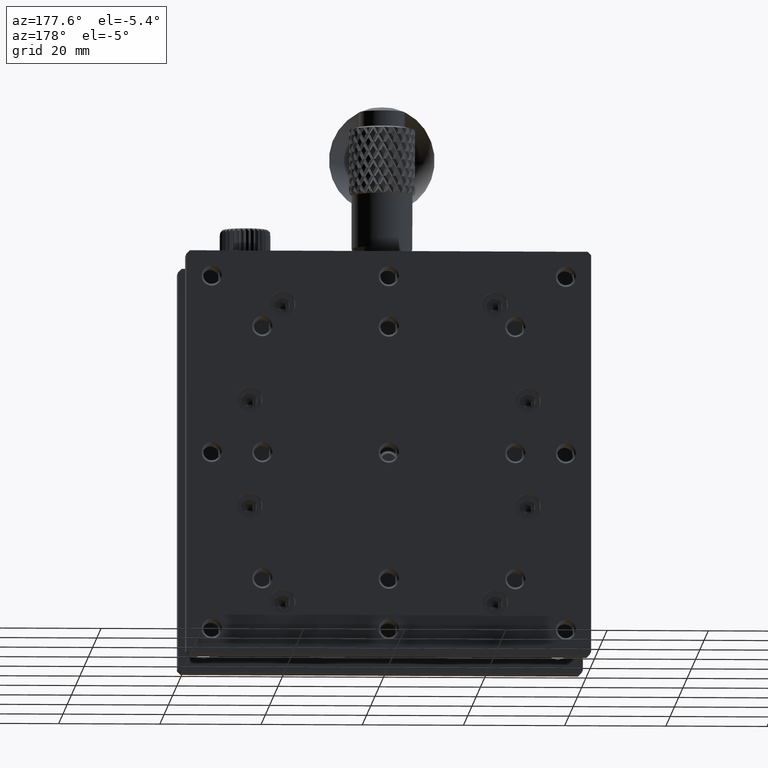
[diagram: clean part render]
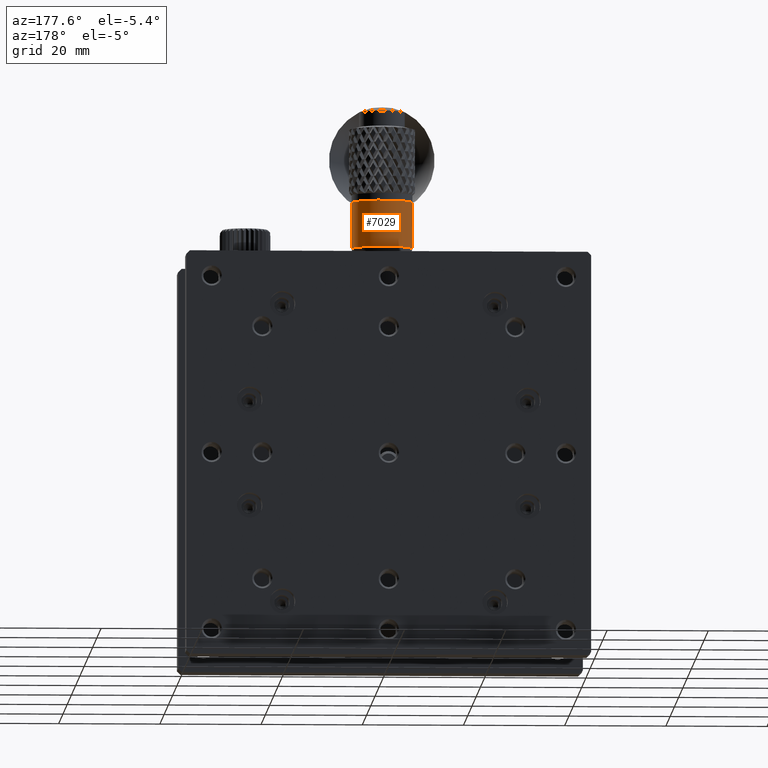
[diagram: same view with one face highlighted and labeled with its STEP entity id]
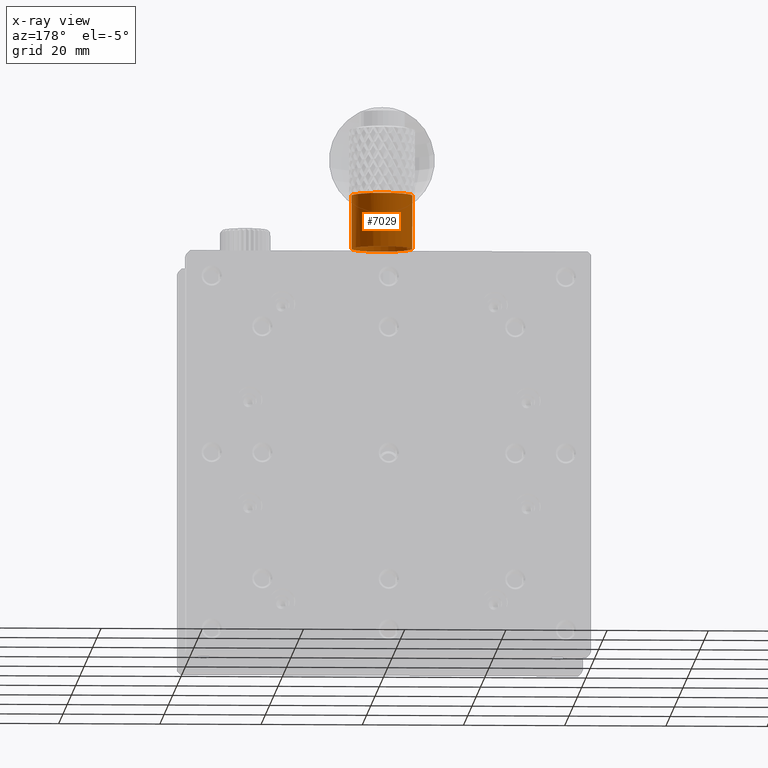
[diagram: x-ray of the same camera — body ghosted, the highlighted face saturated]
A machine part, auxiliary view. The second image highlights one B-rep face of the part: STEP entity #7029.
The next image is the same camera in x-ray: the body ghosted, the highlighted face saturated — about 1% of this face is hidden behind the body in this view.
In plain terms, the highlighted cylindrical surface (bore or boss wall) has radius 6.017 mm, axis along (0, 0, -1).
Its self-contained STEP definition (entity closure, byte-faithful):
#507 = CIRCLE ( 'NONE', #1579, 6.016999999985726433 ) ;
#532 = AXIS2_PLACEMENT_3D ( 'NONE', #61173, #14895, #35542 ) ;
#1332 = EDGE_CURVE ( 'NONE', #28436, #26867, #54332, .T. ) ;
#1579 = AXIS2_PLACEMENT_3D ( 'NONE', #40708, #16299, #15643 ) ;
#1808 = VERTEX_POINT ( 'NONE', #21321 ) ;
#1878 = CARTESIAN_POINT ( 'NONE',  ( 40.00000000000000000, 13.00000000000000355, 13.99999999999226930 ) ) ;
#1987 = ORIENTED_EDGE ( 'NONE', *, *, #19664, .F. ) ;
#2009 = ORIENTED_EDGE ( 'NONE', *, *, #2047, .F. ) ;
#2047 = EDGE_CURVE ( 'NONE', #24278, #4901, #32837, .T. ) ;
#2058 = ORIENTED_EDGE ( 'NONE', *, *, #1332, .F. ) ;
#2146 = EDGE_LOOP ( 'NONE', ( #16731, #52085, #26262, #41944, #19790, #64404, #2058, #40539, #3206, #22034, #2009, #10763, #11995, #47739, #18788, #53273, #36279, #3602, #1987, #43038 ) ) ;
#2238 = EDGE_CURVE ( 'NONE', #43692, #10370, #27105, .T. ) ;
#2700 = DIRECTION ( 'NONE',  ( -0.000000000000000000, -6.072288236963999812E-17, 1.000000000000000000 ) ) ;
#2712 = VERTEX_POINT ( 'NONE', #43340 ) ;
#3206 = ORIENTED_EDGE ( 'NONE', *, *, #23165, .F. ) ;
#3447 = CARTESIAN_POINT ( 'NONE',  ( 40.00000000000000000, 13.00000000000000355, 13.99999999999226930 ) ) ;
#3602 = ORIENTED_EDGE ( 'NONE', *, *, #32095, .F. ) ;
#3644 = AXIS2_PLACEMENT_3D ( 'NONE', #1878, #44146, #48204 ) ;
#4418 = CARTESIAN_POINT ( 'NONE',  ( 34.27749294146560999, 11.14064474485043199, 14.00000000000000178 ) ) ;
#4631 = CARTESIAN_POINT ( 'NONE',  ( 38.14064474485036271, 18.72250705853437225, 14.00000000000000178 ) ) ;
#4892 = VERTEX_POINT ( 'NONE', #41927 ) ;
#4901 = VERTEX_POINT ( 'NONE', #10753 ) ;
#6006 = CIRCLE ( 'NONE', #39508, 6.016999999985726433 ) ;
#6135 = AXIS2_PLACEMENT_3D ( 'NONE', #62668, #21111, #31965 ) ;
#7029 = ADVANCED_FACE ( 'NONE', ( #46744, #61587 ), #21365, .T. ) ;
#8026 = CIRCLE ( 'NONE', #58709, 6.016999999985726433 ) ;
#8834 = AXIS2_PLACEMENT_3D ( 'NONE', #41500, #66786, #57332 ) ;
#9177 = EDGE_CURVE ( 'NONE', #62555, #24278, #49136, .T. ) ;
#9193 = DIRECTION ( 'NONE',  ( 0.000000000000000000, 1.000000000000000000, 0.000000000000000000 ) ) ;
#10068 = CARTESIAN_POINT ( 'NONE',  ( 45.72250705853436870, 11.14064474485035383, 13.99999999999999822 ) ) ;
#10151 = DIRECTION ( 'NONE',  ( 0.000000000000000000, 1.000000000000000000, 0.000000000000000000 ) ) ;
#10327 = CIRCLE ( 'NONE', #64253, 6.016999999985726433 ) ;
#10338 = AXIS2_PLACEMENT_3D ( 'NONE', #52540, #15735, #57941 ) ;
#10370 = VERTEX_POINT ( 'NONE', #54315 ) ;
#10753 = CARTESIAN_POINT ( 'NONE',  ( 46.01699999998572821, 12.99999999999995204, 14.00000000000000178 ) ) ;
#10763 = ORIENTED_EDGE ( 'NONE', *, *, #9177, .F. ) ;
#10851 = AXIS2_PLACEMENT_3D ( 'NONE', #50333, #2700, #18270 ) ;
#10863 = VERTEX_POINT ( 'NONE', #29494 ) ;
#11591 = EDGE_CURVE ( 'NONE', #51880, #10863, #10327, .T. ) ;
#11851 = VERTEX_POINT ( 'NONE', #32531 ) ;
#11862 = AXIS2_PLACEMENT_3D ( 'NONE', #19708, #60908, #14965 ) ;
#11866 = DIRECTION ( 'NONE',  ( -0.000000000000000000, -6.072288236963999812E-17, 1.000000000000000000 ) ) ;
#11995 = ORIENTED_EDGE ( 'NONE', *, *, #44392, .F. ) ;
#12092 = CARTESIAN_POINT ( 'NONE',  ( 40.00000000000000000, 13.00000000000000355, 13.99999999999226930 ) ) ;
#12153 = EDGE_CURVE ( 'NONE', #32928, #26687, #61009, .T. ) ;
#12207 = DIRECTION ( 'NONE',  ( 0.000000000000000000, 1.000000000000000000, 0.000000000000000000 ) ) ;
#12242 = DIRECTION ( 'NONE',  ( 0.000000000000000000, 1.000000000000000000, 0.000000000000000000 ) ) ;
#12253 = CARTESIAN_POINT ( 'NONE',  ( 44.86785525514252981, 16.53670386303538820, 14.00000000000000178 ) ) ;
#12787 = CIRCLE ( 'NONE', #13846, 6.016999999985726433 ) ;
#13161 = DIRECTION ( 'NONE',  ( -0.000000000000000000, -6.072288236963999812E-17, 1.000000000000000000 ) ) ;
#13486 = CARTESIAN_POINT ( 'NONE',  ( 38.14064474485027034, 7.277492941465657061, 13.99999999999999822 ) ) ;
#13846 = AXIS2_PLACEMENT_3D ( 'NONE', #58741, #64803, #33103 ) ;
#13880 = EDGE_CURVE ( 'NONE', #26867, #32928, #35356, .T. ) ;
#14298 = DIRECTION ( 'NONE',  ( 0.000000000000000000, 1.000000000000000000, 0.000000000000000000 ) ) ;
#14895 = DIRECTION ( 'NONE',  ( -0.000000000000000000, -6.072288236963999812E-17, 1.000000000000000000 ) ) ;
#14965 = DIRECTION ( 'NONE',  ( 0.000000000000000000, 1.000000000000000000, 0.000000000000000000 ) ) ;
#14972 = DIRECTION ( 'NONE',  ( 0.000000000000000000, 6.072288236963999812E-17, -1.000000000000000000 ) ) ;
#15643 = DIRECTION ( 'NONE',  ( 0.000000000000000000, 1.000000000000000000, 0.000000000000000000 ) ) ;
#15735 = DIRECTION ( 'NONE',  ( -0.000000000000000000, -6.072288236963999812E-17, 1.000000000000000000 ) ) ;
#16084 = CARTESIAN_POINT ( 'NONE',  ( 35.13214474485748440, 16.53670386303544149, 14.00000000000000178 ) ) ;
#16299 = DIRECTION ( 'NONE',  ( -0.000000000000000000, -6.072288236963999812E-17, 1.000000000000000000 ) ) ;
#16308 = DIRECTION ( 'NONE',  ( -0.000000000000000000, -6.072288236963999812E-17, 1.000000000000000000 ) ) ;
#16731 = ORIENTED_EDGE ( 'NONE', *, *, #11591, .F. ) ;
#17232 = CARTESIAN_POINT ( 'NONE',  ( 41.85935525514959465, 7.277492941465611764, 14.00000000000000178 ) ) ;
#17616 = CIRCLE ( 'NONE', #40329, 6.016999999985726433 ) ;
#18270 = DIRECTION ( 'NONE',  ( 0.000000000000000000, 1.000000000000000000, 0.000000000000000000 ) ) ;
#18430 = CIRCLE ( 'NONE', #43265, 6.016999999985726433 ) ;
#18739 = CARTESIAN_POINT ( 'NONE',  ( 40.00000000000000000, 13.00000000000000355, 13.99999999999226930 ) ) ;
#18788 = ORIENTED_EDGE ( 'NONE', *, *, #40619, .F. ) ;
#19203 = DIRECTION ( 'NONE',  ( -0.000000000000000000, -6.072288236963999812E-17, 1.000000000000000000 ) ) ;
#19280 = VERTEX_POINT ( 'NONE', #12253 ) ;
#19664 = EDGE_CURVE ( 'NONE', #64943, #60887, #17616, .T. ) ;
#19708 = CARTESIAN_POINT ( 'NONE',  ( 40.00000000000000000, 13.00000000000000355, 13.99999999999226930 ) ) ;
#19790 = ORIENTED_EDGE ( 'NONE', *, *, #12153, .F. ) ;
#21111 = DIRECTION ( 'NONE',  ( -0.000000000000000000, -6.072288236963999812E-17, 1.000000000000000000 ) ) ;
#21321 = CARTESIAN_POINT ( 'NONE',  ( 43.53670386303538464, 8.132144744857471963, 14.00000000000000178 ) ) ;
#21365 = CYLINDRICAL_SURFACE ( 'NONE', #23059, 6.017000000000000348 ) ;
#21680 = DIRECTION ( 'NONE',  ( 0.000000000000000000, 1.000000000000000000, 0.000000000000000000 ) ) ;
#22034 = ORIENTED_EDGE ( 'NONE', *, *, #61847, .F. ) ;
#22039 = CARTESIAN_POINT ( 'NONE',  ( 40.00000000000000000, 13.00000000000000355, 13.99999999999226930 ) ) ;
#22288 = AXIS2_PLACEMENT_3D ( 'NONE', #18739, #44775, #14298 ) ;
#23059 = AXIS2_PLACEMENT_3D ( 'NONE', #40715, #14972, #47074 ) ;
#23089 = AXIS2_PLACEMENT_3D ( 'NONE', #30141, #35889, #10151 ) ;
#23165 = EDGE_CURVE ( 'NONE', #4892, #19280, #507, .T. ) ;
#24278 = VERTEX_POINT ( 'NONE', #10068 ) ;
#24683 = VERTEX_POINT ( 'NONE', #55477 ) ;
#26262 = ORIENTED_EDGE ( 'NONE', *, *, #66593, .F. ) ;
#26490 = AXIS2_PLACEMENT_3D ( 'NONE', #54683, #30259, #64797 ) ;
#26687 = VERTEX_POINT ( 'NONE', #4631 ) ;
#26867 = VERTEX_POINT ( 'NONE', #38449 ) ;
#27105 = CIRCLE ( 'NONE', #31431, 6.016999999985726433 ) ;
#27116 = CARTESIAN_POINT ( 'NONE',  ( 40.00000000000000000, 13.00000000000000355, 3.429999999999998828 ) ) ;
#27431 = CARTESIAN_POINT ( 'NONE',  ( 40.00000000000000000, 13.00000000000000355, 13.99999999999226930 ) ) ;
#27828 = CARTESIAN_POINT ( 'NONE',  ( 40.00000000000000000, 13.00000000000000355, 13.99999999999226930 ) ) ;
#28436 = VERTEX_POINT ( 'NONE', #66394 ) ;
#28515 = ORIENTED_EDGE ( 'NONE', *, *, #60465, .T. ) ;
#29187 = CIRCLE ( 'NONE', #34575, 6.017000000000000348 ) ;
#29494 = CARTESIAN_POINT ( 'NONE',  ( 33.98300000001427179, 13.00000000000008171, 14.00000000000000178 ) ) ;
#30141 = CARTESIAN_POINT ( 'NONE',  ( 40.00000000000000000, 13.00000000000000355, 13.99999999999226930 ) ) ;
#30259 = DIRECTION ( 'NONE',  ( -0.000000000000000000, -6.072288236963999812E-17, 1.000000000000000000 ) ) ;
#31193 = CARTESIAN_POINT ( 'NONE',  ( 44.86785525514247297, 9.463296136964542526, 14.00000000000000533 ) ) ;
#31382 = CARTESIAN_POINT ( 'NONE',  ( 40.00000000000002842, 19.01699999998574597, 14.00000000000000178 ) ) ;
#31431 = AXIS2_PLACEMENT_3D ( 'NONE', #12092, #32768, #53347 ) ;
#31547 = DIRECTION ( 'NONE',  ( 0.000000000000000000, -1.000000000000000000, -7.207592969822199820E-17 ) ) ;
#31965 = DIRECTION ( 'NONE',  ( 0.000000000000000000, 1.000000000000000000, 0.000000000000000000 ) ) ;
#32095 = EDGE_CURVE ( 'NONE', #60887, #2712, #12787, .T. ) ;
#32194 = DIRECTION ( 'NONE',  ( -0.000000000000000000, -6.072288236963999812E-17, 1.000000000000000000 ) ) ;
#32531 = CARTESIAN_POINT ( 'NONE',  ( 40.00000000000000000, 6.983000000000002316, 3.429999999999998384 ) ) ;
#32619 = CIRCLE ( 'NONE', #8834, 6.016999999985726433 ) ;
#32768 = DIRECTION ( 'NONE',  ( -0.000000000000000000, -6.072288236963999812E-17, 1.000000000000000000 ) ) ;
#32837 = CIRCLE ( 'NONE', #3644, 6.016999999985726433 ) ;
#32928 = VERTEX_POINT ( 'NONE', #31382 ) ;
#33103 = DIRECTION ( 'NONE',  ( 0.000000000000000000, 1.000000000000000000, 0.000000000000000000 ) ) ;
#33121 = CIRCLE ( 'NONE', #49294, 6.016999999985726433 ) ;
#34057 = EDGE_CURVE ( 'NONE', #19280, #28436, #39535, .T. ) ;
#34221 = CIRCLE ( 'NONE', #22288, 6.016999999985726433 ) ;
#34575 = AXIS2_PLACEMENT_3D ( 'NONE', #27116, #11866, #31547 ) ;
#34973 = CIRCLE ( 'NONE', #23089, 6.016999999985726433 ) ;
#35356 = CIRCLE ( 'NONE', #6135, 6.016999999985726433 ) ;
#35542 = DIRECTION ( 'NONE',  ( 0.000000000000000000, 1.000000000000000000, 0.000000000000000000 ) ) ;
#35889 = DIRECTION ( 'NONE',  ( -0.000000000000000000, -6.072288236963999812E-17, 1.000000000000000000 ) ) ;
#36279 = ORIENTED_EDGE ( 'NONE', *, *, #39012, .F. ) ;
#38449 = CARTESIAN_POINT ( 'NONE',  ( 41.85935525514967281, 18.72250705853434738, 14.00000000000000178 ) ) ;
#38494 = DIRECTION ( 'NONE',  ( -0.000000000000000000, -6.072288236963999812E-17, 1.000000000000000000 ) ) ;
#39012 = EDGE_CURVE ( 'NONE', #2712, #43692, #18430, .T. ) ;
#39508 = AXIS2_PLACEMENT_3D ( 'NONE', #27828, #48459, #12242 ) ;
#39535 = CIRCLE ( 'NONE', #10338, 6.016999999985726433 ) ;
#39844 = CARTESIAN_POINT ( 'NONE',  ( 40.00000000000000000, 13.00000000000000355, 13.99999999999226930 ) ) ;
#40329 = AXIS2_PLACEMENT_3D ( 'NONE', #39844, #19203, #45571 ) ;
#40539 = ORIENTED_EDGE ( 'NONE', *, *, #34057, .F. ) ;
#40619 = EDGE_CURVE ( 'NONE', #10370, #51117, #62686, .T. ) ;
#40708 = CARTESIAN_POINT ( 'NONE',  ( 40.00000000000000000, 13.00000000000000355, 13.99999999999226930 ) ) ;
#40715 = CARTESIAN_POINT ( 'NONE',  ( 40.00000000000000000, 13.00000000000000533, -19.50000000000000355 ) ) ;
#41073 = CIRCLE ( 'NONE', #11862, 6.016999999985726433 ) ;
#41500 = CARTESIAN_POINT ( 'NONE',  ( 40.00000000000000000, 13.00000000000000355, 13.99999999999226930 ) ) ;
#41927 = CARTESIAN_POINT ( 'NONE',  ( 45.72250705853438291, 14.85935525514960887, 14.00000000000000178 ) ) ;
#41944 = ORIENTED_EDGE ( 'NONE', *, *, #64938, .F. ) ;
#43038 = ORIENTED_EDGE ( 'NONE', *, *, #60392, .F. ) ;
#43265 = AXIS2_PLACEMENT_3D ( 'NONE', #59136, #13161, #63179 ) ;
#43340 = CARTESIAN_POINT ( 'NONE',  ( 36.46329613696452299, 8.132144744857521701, 13.99999999999999467 ) ) ;
#43391 = CARTESIAN_POINT ( 'NONE',  ( 34.27749294146565262, 14.85935525514968703, 14.00000000000000178 ) ) ;
#43692 = VERTEX_POINT ( 'NONE', #13486 ) ;
#44146 = DIRECTION ( 'NONE',  ( -0.000000000000000000, -6.072288236963999812E-17, 1.000000000000000000 ) ) ;
#44392 = EDGE_CURVE ( 'NONE', #1808, #62555, #34221, .T. ) ;
#44723 = DIRECTION ( 'NONE',  ( -0.000000000000000000, -6.072288236963999812E-17, 1.000000000000000000 ) ) ;
#44775 = DIRECTION ( 'NONE',  ( -0.000000000000000000, -6.072288236963999812E-17, 1.000000000000000000 ) ) ;
#45571 = DIRECTION ( 'NONE',  ( 0.000000000000000000, 1.000000000000000000, 0.000000000000000000 ) ) ;
#46744 = FACE_OUTER_BOUND ( 'NONE', #2146, .T. ) ;
#47074 = DIRECTION ( 'NONE',  ( 0.000000000000000000, -1.000000000000000000, 0.000000000000000000 ) ) ;
#47739 = ORIENTED_EDGE ( 'NONE', *, *, #64111, .F. ) ;
#48204 = DIRECTION ( 'NONE',  ( 0.000000000000000000, 1.000000000000000000, 0.000000000000000000 ) ) ;
#48459 = DIRECTION ( 'NONE',  ( -0.000000000000000000, -6.072288236963999812E-17, 1.000000000000000000 ) ) ;
#49136 = CIRCLE ( 'NONE', #532, 6.016999999985726433 ) ;
#49294 = AXIS2_PLACEMENT_3D ( 'NONE', #27431, #32194, #21680 ) ;
#49891 = CARTESIAN_POINT ( 'NONE',  ( 35.13214474485745598, 9.463296136964636673, 13.99999999999999822 ) ) ;
#50333 = CARTESIAN_POINT ( 'NONE',  ( 40.00000000000000000, 13.00000000000000355, 13.99999999999226930 ) ) ;
#51117 = VERTEX_POINT ( 'NONE', #17232 ) ;
#51880 = VERTEX_POINT ( 'NONE', #43391 ) ;
#52085 = ORIENTED_EDGE ( 'NONE', *, *, #53833, .F. ) ;
#52540 = CARTESIAN_POINT ( 'NONE',  ( 40.00000000000000000, 13.00000000000000355, 13.99999999999226930 ) ) ;
#53273 = ORIENTED_EDGE ( 'NONE', *, *, #2238, .F. ) ;
#53347 = DIRECTION ( 'NONE',  ( 0.000000000000000000, 1.000000000000000000, 0.000000000000000000 ) ) ;
#53833 = EDGE_CURVE ( 'NONE', #56299, #51880, #33121, .T. ) ;
#54315 = CARTESIAN_POINT ( 'NONE',  ( 39.99999999999993605, 6.983000000014275344, 14.00000000000000178 ) ) ;
#54332 = CIRCLE ( 'NONE', #63997, 6.016999999985726433 ) ;
#54683 = CARTESIAN_POINT ( 'NONE',  ( 40.00000000000000000, 13.00000000000000355, 13.99999999999226930 ) ) ;
#55477 = CARTESIAN_POINT ( 'NONE',  ( 36.46329613696459404, 17.86785525514252981, 14.00000000000000178 ) ) ;
#56299 = VERTEX_POINT ( 'NONE', #16084 ) ;
#57332 = DIRECTION ( 'NONE',  ( 0.000000000000000000, 1.000000000000000000, 0.000000000000000000 ) ) ;
#57941 = DIRECTION ( 'NONE',  ( 0.000000000000000000, 1.000000000000000000, 0.000000000000000000 ) ) ;
#58709 = AXIS2_PLACEMENT_3D ( 'NONE', #22039, #16308, #12207 ) ;
#58741 = CARTESIAN_POINT ( 'NONE',  ( 40.00000000000000000, 13.00000000000000355, 13.99999999999226930 ) ) ;
#59051 = DIRECTION ( 'NONE',  ( 0.000000000000000000, 1.000000000000000000, 0.000000000000000000 ) ) ;
#59136 = CARTESIAN_POINT ( 'NONE',  ( 40.00000000000000000, 13.00000000000000355, 13.99999999999226930 ) ) ;
#60392 = EDGE_CURVE ( 'NONE', #10863, #64943, #41073, .T. ) ;
#60465 = EDGE_CURVE ( 'NONE', #11851, #11851, #29187, .T. ) ;
#60887 = VERTEX_POINT ( 'NONE', #49891 ) ;
#60908 = DIRECTION ( 'NONE',  ( -0.000000000000000000, -6.072288236963999812E-17, 1.000000000000000000 ) ) ;
#61009 = CIRCLE ( 'NONE', #26490, 6.016999999985726433 ) ;
#61173 = CARTESIAN_POINT ( 'NONE',  ( 40.00000000000000000, 13.00000000000000355, 13.99999999999226930 ) ) ;
#61587 = FACE_OUTER_BOUND ( 'NONE', #64134, .T. ) ;
#61847 = EDGE_CURVE ( 'NONE', #4901, #4892, #32619, .T. ) ;
#62555 = VERTEX_POINT ( 'NONE', #31193 ) ;
#62668 = CARTESIAN_POINT ( 'NONE',  ( 40.00000000000000000, 13.00000000000000355, 13.99999999999226930 ) ) ;
#62686 = CIRCLE ( 'NONE', #10851, 6.016999999985726433 ) ;
#63179 = DIRECTION ( 'NONE',  ( 0.000000000000000000, 1.000000000000000000, 0.000000000000000000 ) ) ;
#63997 = AXIS2_PLACEMENT_3D ( 'NONE', #64779, #38494, #59051 ) ;
#64111 = EDGE_CURVE ( 'NONE', #51117, #1808, #8026, .T. ) ;
#64134 = EDGE_LOOP ( 'NONE', ( #28515 ) ) ;
#64253 = AXIS2_PLACEMENT_3D ( 'NONE', #3447, #44723, #9193 ) ;
#64404 = ORIENTED_EDGE ( 'NONE', *, *, #13880, .F. ) ;
#64779 = CARTESIAN_POINT ( 'NONE',  ( 40.00000000000000000, 13.00000000000000355, 13.99999999999226930 ) ) ;
#64797 = DIRECTION ( 'NONE',  ( 0.000000000000000000, 1.000000000000000000, 0.000000000000000000 ) ) ;
#64803 = DIRECTION ( 'NONE',  ( -0.000000000000000000, -6.072288236963999812E-17, 1.000000000000000000 ) ) ;
#64938 = EDGE_CURVE ( 'NONE', #26687, #24683, #34973, .T. ) ;
#64943 = VERTEX_POINT ( 'NONE', #4418 ) ;
#66394 = CARTESIAN_POINT ( 'NONE',  ( 43.53670386303546280, 17.86785525514250139, 14.00000000000000533 ) ) ;
#66593 = EDGE_CURVE ( 'NONE', #24683, #56299, #6006, .T. ) ;
#66786 = DIRECTION ( 'NONE',  ( -0.000000000000000000, -6.072288236963999812E-17, 1.000000000000000000 ) ) ;